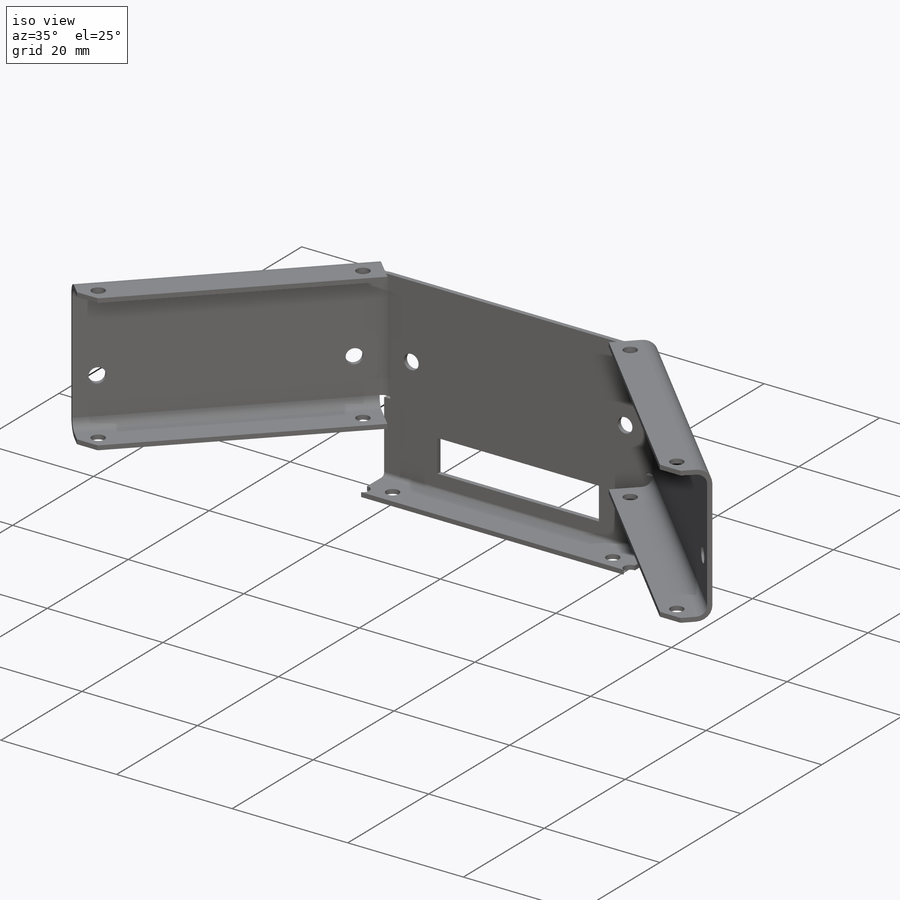
[diagram: iso view]
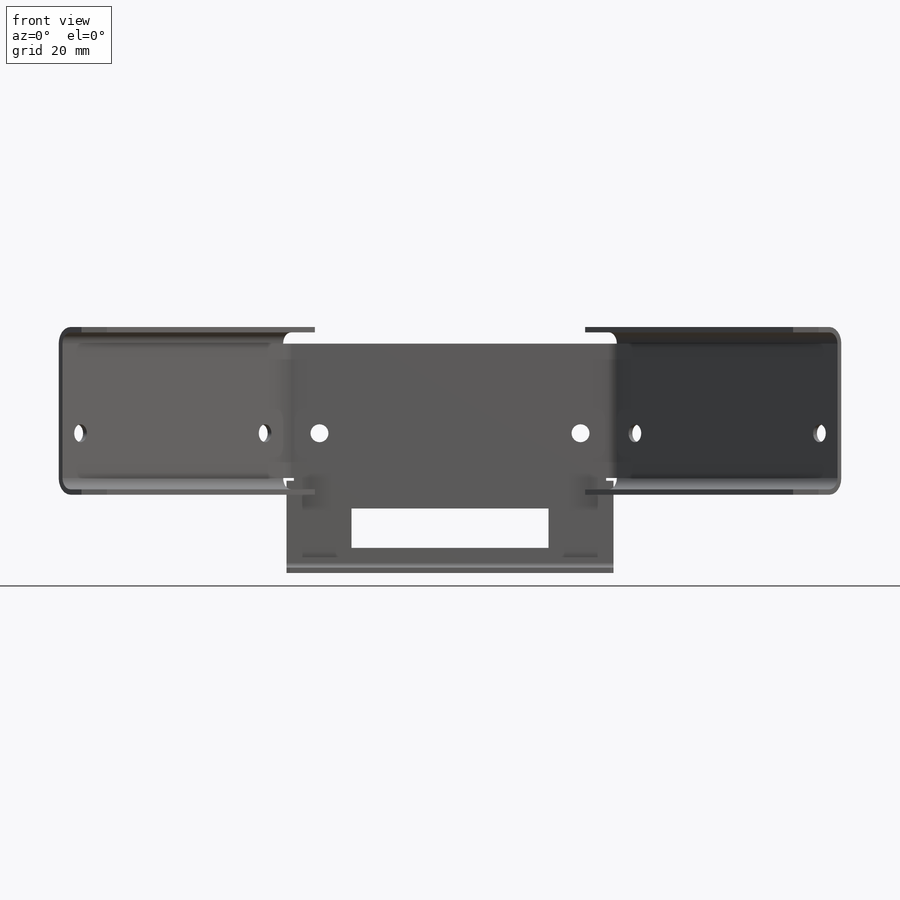
[diagram: front view]
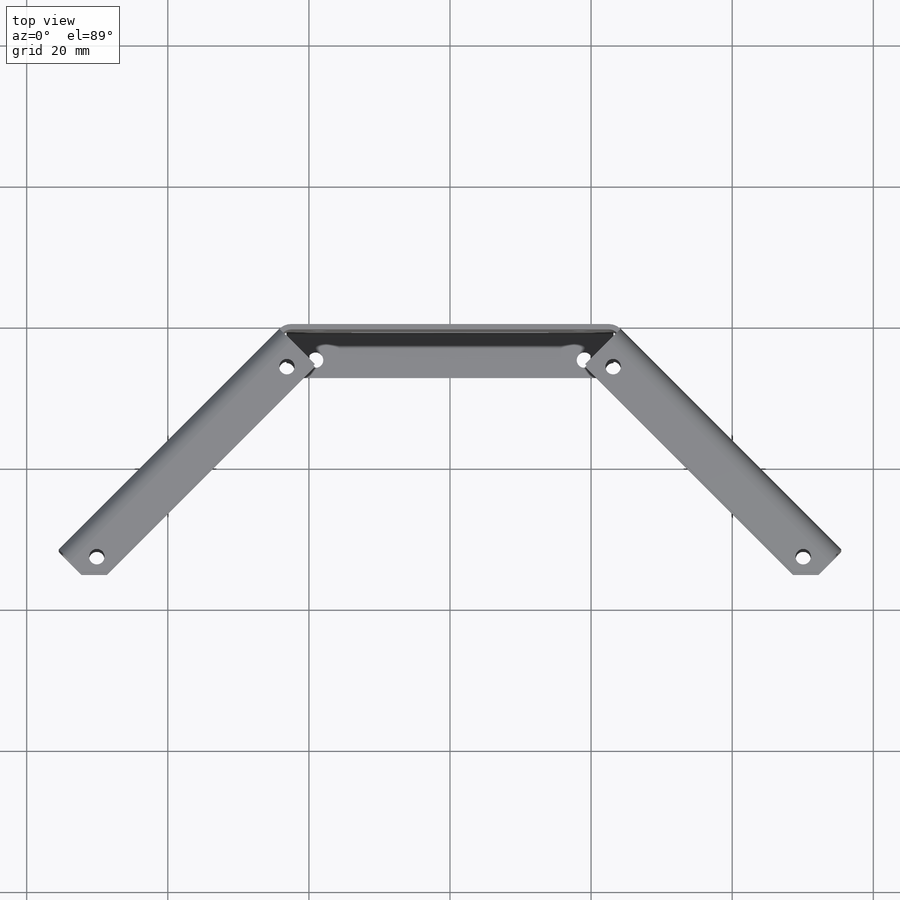
[diagram: top view]
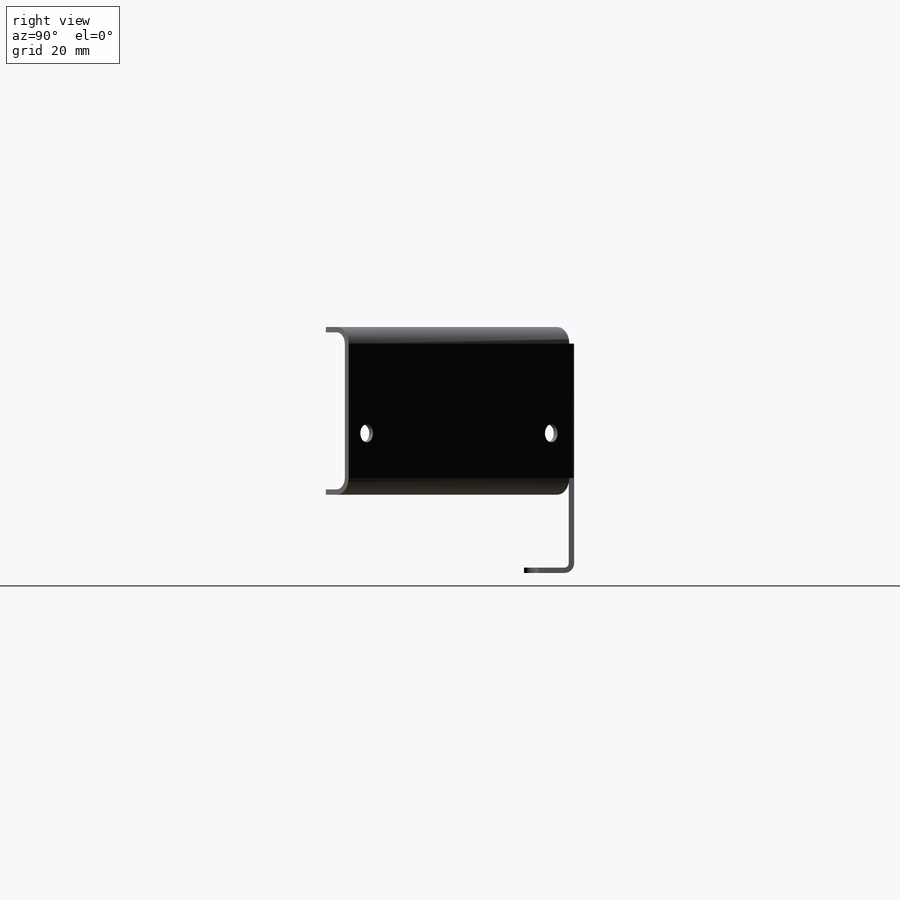
[diagram: right view]
SOLIDWORKS PART (.sldprt)
format: sldprt  version: not decoded by parser v0  size: 502,272 bytes
history: native  units: mm
features: sketch x21, cut_extrude x3, mirror x2, material x1, extrude x1, sheet_metal_op x1, hole x1, chamfer x1 + 1 further entry (+15 scaffold rows collapsed; 1 parser-record rows omitted)
feature tree (48):
  scaffold x15  (default folders/planes/origin — collapsed)
  material  "6061 Alloy"
  sketch  "Sketch1"  dims[c1.D1=46.99mm c1.D2=45.212mm c1.D3=~22.573268mm c2.D3=~210.107778deg c3.D3=~22.573268mm c4.D3=135.0deg c4.D1=19.05mm c4.Thickness=0.762mm c4.D6=1.0mm c4.D7=1.27mm]
  sketch  "Sketch11"
  extrude  "Extrude1"  Depth=12.7mm
  sheet_metal_op  "Sheet-Metal2"
  sketch  "Sharp-Sketch1"  dims[c1.SharpBend1=0.0 c1.D1=0.0mm c1.D4=45.0deg c1.D5=2.0 c1.D8=0.381mm c1.D9=0.381mm c2.D1=1.6002mm c2.D2=500.0mm c2.D3=1.6002mm]
  sketch  "Flat-Sketch1"  dims[D1=0.0mm]
  sketch  "Sketch23"  dims[c1.EdgeBend2=0.0 c1.D1=0.635mm c1.D4=90.0deg c1.D5=3.0 c1.D8=0.381mm c1.D9=0.381mm c2.D1=0.635mm c2.D2=500.0mm c2.D3=0.0mm c2.D6=10.0mm c2.D7=6.35mm]
  sketch  "Sketch24"  dims[c1.D1=~6.26934mm c1.D2=~6.26934mm c1.D3=2.54mm c2.D1=37.0mm c2.D2=18.5mm c2.D4=6.35mm]
  cut_extrude  "Extrude2"  [1 undecoded]
  sketch  "Sketch26"  dims[c1.D1=2.54mm c1.D2=2.54mm c2.D1=37.0mm c2.D3=6.35mm]
  cut_extrude  "Extrude3"  [1 undecoded]
  mirror  "Mirror1"
  mirror  "Edge-Flange3"
  sketch  "Sketch31"
  sketch  "Sketch32"
  sketch  "Sketch35"
  sketch  "Sketch37"  dims[c1.EdgeBend3=0.0 c1.D1=1.6002mm c1.D4=90.0deg c1.D5=4.0 c1.D8=0.381mm c1.D9=0.381mm c1.EdgeBend4=0.0 c2.D1=1.6002mm c2.D4=90.0deg c2.D5=5.0 c2.D8=0.381mm c2.D9=0.381mm c2.EdgeBend5=0.0 c3.D1=1.6002mm c3.D4=90.0deg c3.D5=6.0 c3.D8=0.381mm c3.D9=0.381mm c3.EdgeBend6=0.0 c4.D1=1.6002mm c4.D4=90.0deg c4.D5=7.0 c4.D8=0.381mm c4.D9=0.381mm c5.D1=1.6002mm c5.D2=500.0mm c5.D3=0.0mm c5.D6=10.0mm c5.D7=6.35mm c5.D8=1.0mm]
  hole  "#2-56 Tapped Hole1"  Diameter=2.1844mm Depth=34.8742mm
  sketch  "3DSketch1"  dims[D1=38.1mm D2=2.54mm D3=38.1mm D4=2.54mm D5=38.1mm D6=2.54mm]
  sketch  "Sketch33"  dims[hole-wizard template sketch: 59 standard entries collapsed; hole parameters kept: c18.Thread Major Dia.=2.1844mm c18.Thru Tap Drill Depth=34.8742mm]
  sketch  "Sketch38"  dims[c1.D1=27.94mm c1.D2=6.35mm c1.D3=5.588mm c2.D2=6.35mm]
  cut_extrude  "Extrude4"  [1 undecoded]
  chamfer  "Chamfer1"  Distance=2.54mm Angle=45deg
  "Flat-Pattern2"
  sketch  "Bend-Lines2"
  sketch  "Flatten-<SharpBend2>1"
  sketch  "Flatten-<EdgeBend2>1"
  sketch  "Flatten-<EdgeBend3>1"
  sketch  "Flatten-<EdgeBend4>1"
  sketch  "Flatten-<EdgeBend5>1"
  sketch  "Flatten-<EdgeBend6>1"
  parser-record x1  (decoder bookkeeping rows leaked as tree rows — omitted from the tree; the rows remain in map.json)
decode coverage: 13 of 30 modeling features carry decoded parameters; 1 rows unclassified (native names shown)
note: ~ marks probable driven/reference dimensions
note: 3 parameter values undecoded
summary: no parameter record found for 3 features
note: suppression state not decoded; provenance and decode notes live in map.json
